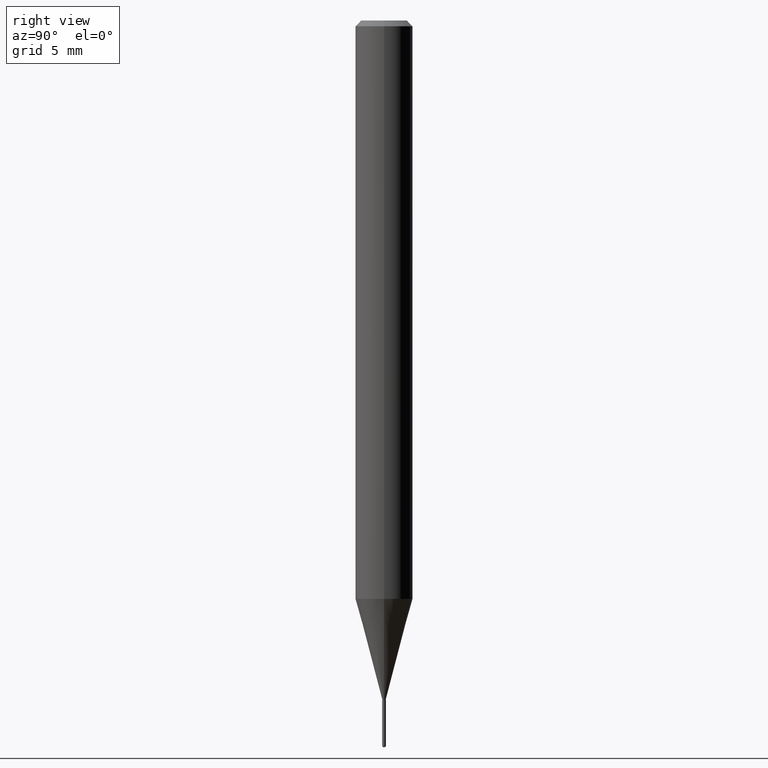
[diagram: clean part render]
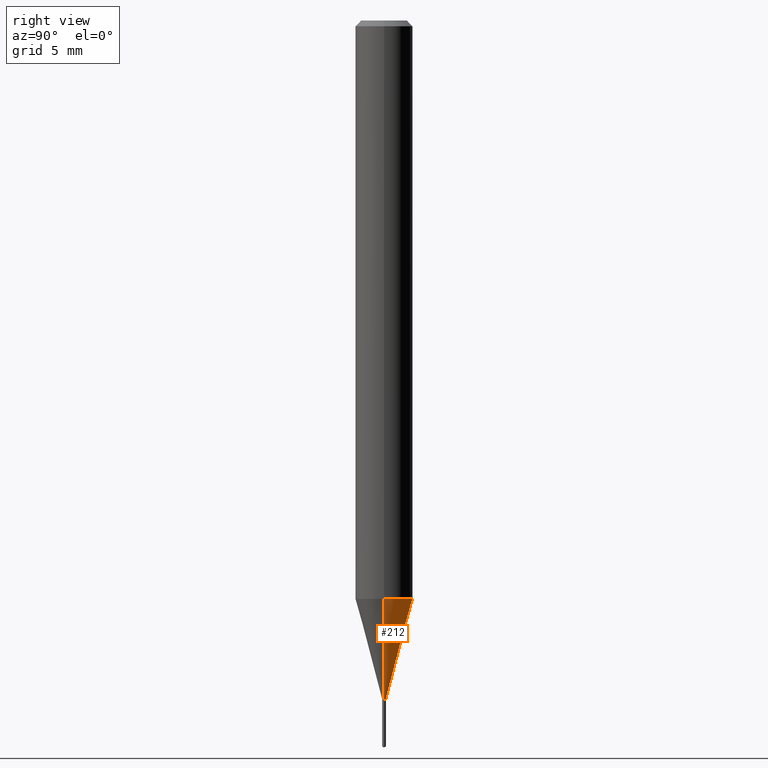
[diagram: same view with one face highlighted and labeled with its STEP entity id]
A machine part, right view. The second image highlights one B-rep face of the part: STEP entity #212.
In plain terms, the highlighted conical surface has half-angle 15 deg.
Its self-contained STEP definition (entity closure, byte-faithful):
#9 = CIRCLE ( 'NONE', #399, 0.05905000000000014404 ) ;
#13 = FACE_OUTER_BOUND ( 'NONE', #106, .T. ) ;
#52 = CARTESIAN_POINT ( 'NONE',  ( 3.415341734718161419E-29, -4.876202837828336250E-15, -1.396599999999999842 ) ) ;
#80 = VERTEX_POINT ( 'NONE', #305 ) ;
#85 = VECTOR ( 'NONE', #298, 39.37007874015748854 ) ;
#91 = CARTESIAN_POINT ( 'NONE',  ( -0.003749999999999999861, -4.850604929638985175E-15, -1.396599999999999842 ) ) ;
#97 = AXIS2_PLACEMENT_3D ( 'NONE', #293, #142, #133 ) ;
#98 = AXIS2_PLACEMENT_3D ( 'NONE', #52, #129, #214 ) ;
#103 = DIRECTION ( 'NONE',  ( 0.2588190451025211281, 1.565188264969622954E-15, 0.9659258262890679791 ) ) ;
#106 = EDGE_LOOP ( 'NONE', ( #432, #204, #206, #264 ) ) ;
#129 = DIRECTION ( 'NONE',  ( -2.445468806185136597E-29, 3.491481338843145583E-15, 1.000000000000000000 ) ) ;
#133 = DIRECTION ( 'NONE',  ( 1.000000000000000000, -6.982962677686138915E-15, 0.000000000000000000 ) ) ;
#142 = DIRECTION ( 'NONE',  ( -2.445468806185136597E-29, 3.491481338843145583E-15, 1.000000000000000000 ) ) ;
#148 = CARTESIAN_POINT ( 'NONE',  ( -0.003749999999999999861, -4.849557485237332272E-15, -1.396599999999999842 ) ) ;
#149 = VECTOR ( 'NONE', #103, 39.37007874015748854 ) ;
#155 = CARTESIAN_POINT ( 'NONE',  ( 0.003749999999999999861, -4.902388947869659593E-15, -1.396599999999999842 ) ) ;
#187 = LINE ( 'NONE', #155, #149 ) ;
#191 = EDGE_CURVE ( 'NONE', #213, #253, #260, .T. ) ;
#204 = ORIENTED_EDGE ( 'NONE', *, *, #191, .T. ) ;
#206 = ORIENTED_EDGE ( 'NONE', *, *, #274, .F. ) ;
#212 = ADVANCED_FACE ( 'NONE', ( #13 ), #428, .T. ) ;
#213 = VERTEX_POINT ( 'NONE', #91 ) ;
#214 = DIRECTION ( 'NONE',  ( 1.000000000000000000, -6.982962677686138915E-15, 0.000000000000000000 ) ) ;
#223 = EDGE_CURVE ( 'NONE', #327, #213, #284, .T. ) ;
#224 = CARTESIAN_POINT ( 'NONE',  ( -0.05905000000000013710, -3.736047020373655189E-15, -1.190217590341440701 ) ) ;
#252 = CARTESIAN_POINT ( 'NONE',  ( 0.003749999999999999861, -4.902388947869659593E-15, -1.396599999999999842 ) ) ;
#253 = VERTEX_POINT ( 'NONE', #224 ) ;
#258 = EDGE_CURVE ( 'NONE', #327, #80, #187, .T. ) ;
#260 = LINE ( 'NONE', #148, #85 ) ;
#264 = ORIENTED_EDGE ( 'NONE', *, *, #258, .F. ) ;
#274 = EDGE_CURVE ( 'NONE', #80, #253, #9, .T. ) ;
#284 = CIRCLE ( 'NONE', #97, 0.003749999999999999861 ) ;
#293 = CARTESIAN_POINT ( 'NONE',  ( 3.415341734718161419E-29, -4.876202837828336250E-15, -1.396599999999999842 ) ) ;
#298 = DIRECTION ( 'NONE',  ( -0.2588190451025211281, 5.211531920934547886E-15, 0.9659258262890679791 ) ) ;
#305 = CARTESIAN_POINT ( 'NONE',  ( 0.05905000000000013710, -4.567966451957370391E-15, -1.190217590341440701 ) ) ;
#306 = CARTESIAN_POINT ( 'NONE',  ( 2.910639989752832993E-29, -4.155622505839995471E-15, -1.190217590341440701 ) ) ;
#327 = VERTEX_POINT ( 'NONE', #252 ) ;
#380 = DIRECTION ( 'NONE',  ( -2.445468806185136597E-29, 3.491481338843145583E-15, 1.000000000000000000 ) ) ;
#399 = AXIS2_PLACEMENT_3D ( 'NONE', #306, #380, #453 ) ;
#428 = CONICAL_SURFACE ( 'NONE', #98, 0.003749999999999999861, 0.2617993877991498519 ) ;
#432 = ORIENTED_EDGE ( 'NONE', *, *, #223, .T. ) ;
#453 = DIRECTION ( 'NONE',  ( 1.000000000000000000, -6.982962677686263555E-15, 0.000000000000000000 ) ) ;